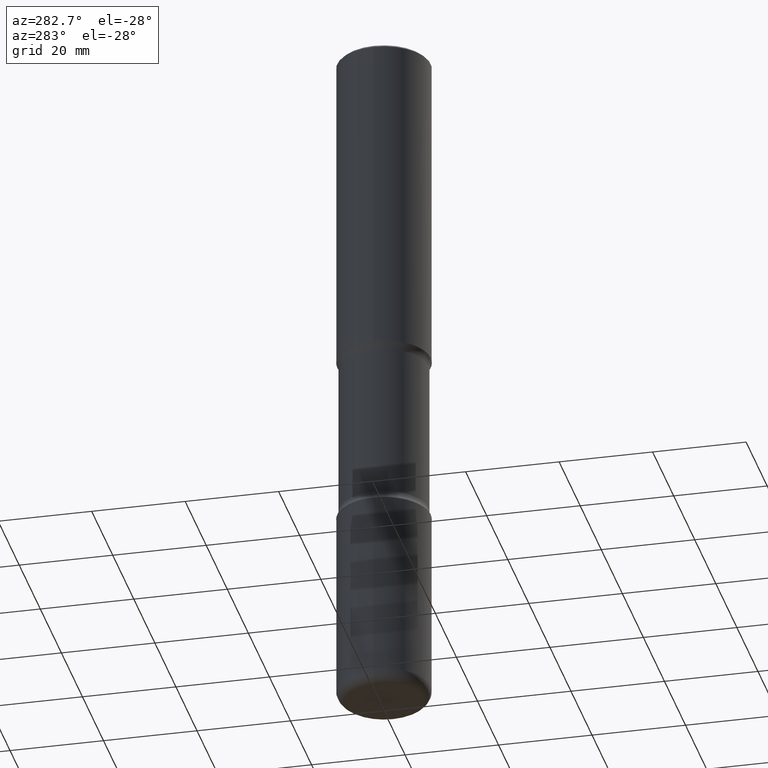
[diagram: clean part render]
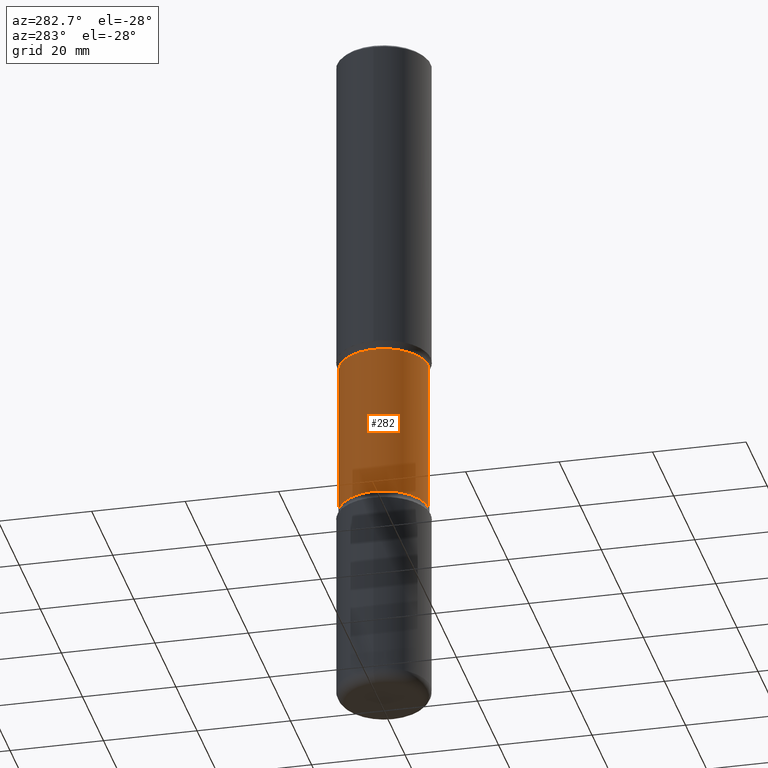
[diagram: same view with one face highlighted and labeled with its STEP entity id]
A machine part, auxiliary view. The second image highlights one B-rep face of the part: STEP entity #282.
In plain terms, the highlighted cylindrical surface (partial cylindrical patch) has radius 9.4996 mm, axis along (0, -0, -1).
Its self-contained STEP definition (entity closure, byte-faithful):
#3 = DIRECTION ( 'NONE',  ( 2.499563752616943710E-29, -3.414014296659653741E-15, -1.000000000000000000 ) ) ;
#7 = AXIS2_PLACEMENT_3D ( 'NONE', #197, #68, #147 ) ;
#22 = CARTESIAN_POINT ( 'NONE',  ( 2.611628041454766160E-15, 0.3739999999999856772, -4.145243411606584161 ) ) ;
#26 = VERTEX_POINT ( 'NONE', #520 ) ;
#45 = CARTESIAN_POINT ( 'NONE',  ( 1.013341980608738414E-28, -1.447825793226129018E-14, -4.145243411606583273 ) ) ;
#53 = LINE ( 'NONE', #531, #525 ) ;
#64 = CYLINDRICAL_SURFACE ( 'NONE', #7, 0.3740000000000001656 ) ;
#68 = DIRECTION ( 'NONE',  ( 2.499563752616943710E-29, -3.414014296659653741E-15, -1.000000000000000000 ) ) ;
#78 = EDGE_CURVE ( 'NONE', #26, #137, #119, .T. ) ;
#94 = ORIENTED_EDGE ( 'NONE', *, *, #178, .T. ) ;
#111 = EDGE_CURVE ( 'NONE', #346, #203, #213, .T. ) ;
#119 = CIRCLE ( 'NONE', #383, 0.3740000000000001656 ) ;
#135 = CARTESIAN_POINT ( 'NONE',  ( -2.565826251166408560E-15, -0.3740000000000206493, -5.905499999999997307 ) ) ;
#137 = VERTEX_POINT ( 'NONE', #475 ) ;
#147 = DIRECTION ( 'NONE',  ( 6.982962677686266711E-15, 1.000000000000000000, -2.921762560068729411E-15 ) ) ;
#177 = DIRECTION ( 'NONE',  ( 2.499563752616943710E-29, -3.414014296659653741E-15, -1.000000000000000000 ) ) ;
#178 = EDGE_CURVE ( 'NONE', #137, #203, #53, .T. ) ;
#197 = CARTESIAN_POINT ( 'NONE',  ( 1.453329336974072664E-28, -2.048779909082575425E-14, -5.905499999999998195 ) ) ;
#198 = ORIENTED_EDGE ( 'NONE', *, *, #111, .F. ) ;
#203 = VERTEX_POINT ( 'NONE', #22 ) ;
#213 = CIRCLE ( 'NONE', #504, 0.3740000000000001656 ) ;
#214 = DIRECTION ( 'NONE',  ( 6.982962677686266711E-15, 1.000000000000000000, -2.921762560068729411E-15 ) ) ;
#226 = VECTOR ( 'NONE', #177, 39.37007874015748143 ) ;
#241 = FACE_OUTER_BOUND ( 'NONE', #290, .T. ) ;
#282 = ADVANCED_FACE ( 'NONE', ( #241 ), #64, .T. ) ;
#290 = EDGE_LOOP ( 'NONE', ( #469, #323, #94, #198 ) ) ;
#297 = CARTESIAN_POINT ( 'NONE',  ( 6.829029461346524548E-29, -9.964976017815853586E-15, -2.823256588393414646 ) ) ;
#323 = ORIENTED_EDGE ( 'NONE', *, *, #78, .T. ) ;
#346 = VERTEX_POINT ( 'NONE', #509 ) ;
#355 = DIRECTION ( 'NONE',  ( 2.499563752616943710E-29, -3.414014296659653741E-15, -1.000000000000000000 ) ) ;
#383 = AXIS2_PLACEMENT_3D ( 'NONE', #297, #355, #479 ) ;
#469 = ORIENTED_EDGE ( 'NONE', *, *, #538, .F. ) ;
#475 = CARTESIAN_POINT ( 'NONE',  ( 2.611628041454733028E-15, 0.3739999999999901736, -2.823256588393415534 ) ) ;
#479 = DIRECTION ( 'NONE',  ( 6.982962677686266711E-15, 1.000000000000000000, -2.921762560068729411E-15 ) ) ;
#504 = AXIS2_PLACEMENT_3D ( 'NONE', #45, #3, #214 ) ;
#509 = CARTESIAN_POINT ( 'NONE',  ( -2.633402156444500718E-15, -0.3740000000000146541, -4.145243411606582384 ) ) ;
#520 = CARTESIAN_POINT ( 'NONE',  ( -2.633402156444536217E-15, -0.3740000000000101577, -2.823256588393413313 ) ) ;
#525 = VECTOR ( 'NONE', #527, 39.37007874015748143 ) ;
#527 = DIRECTION ( 'NONE',  ( 2.499563752616943710E-29, -3.414014296659653741E-15, -1.000000000000000000 ) ) ;
#529 = LINE ( 'NONE', #135, #226 ) ;
#531 = CARTESIAN_POINT ( 'NONE',  ( 2.611628041454809941E-15, 0.3739999999999796820, -5.905499999999999972 ) ) ;
#538 = EDGE_CURVE ( 'NONE', #26, #346, #529, .T. ) ;